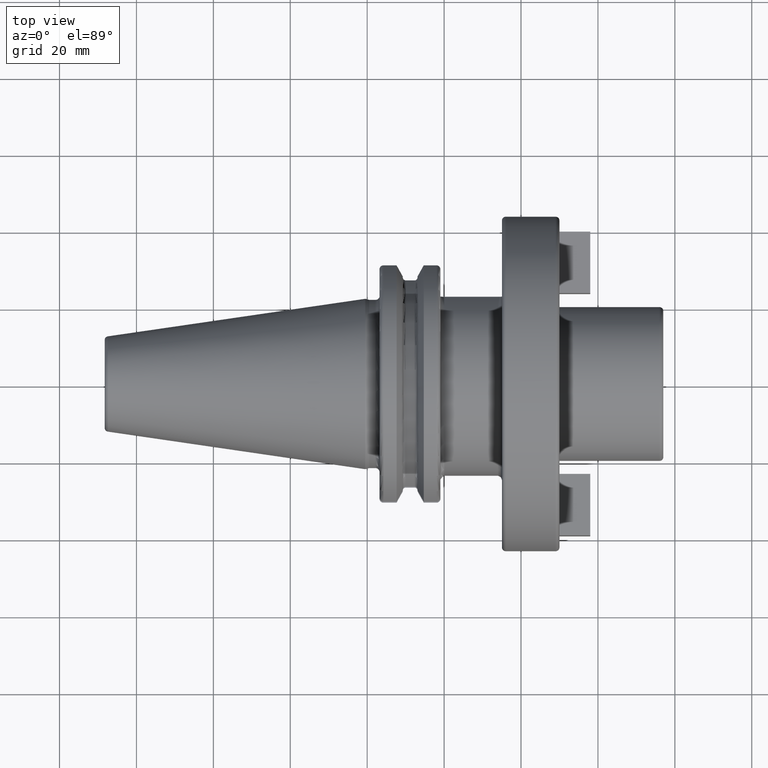
[diagram: clean part render]
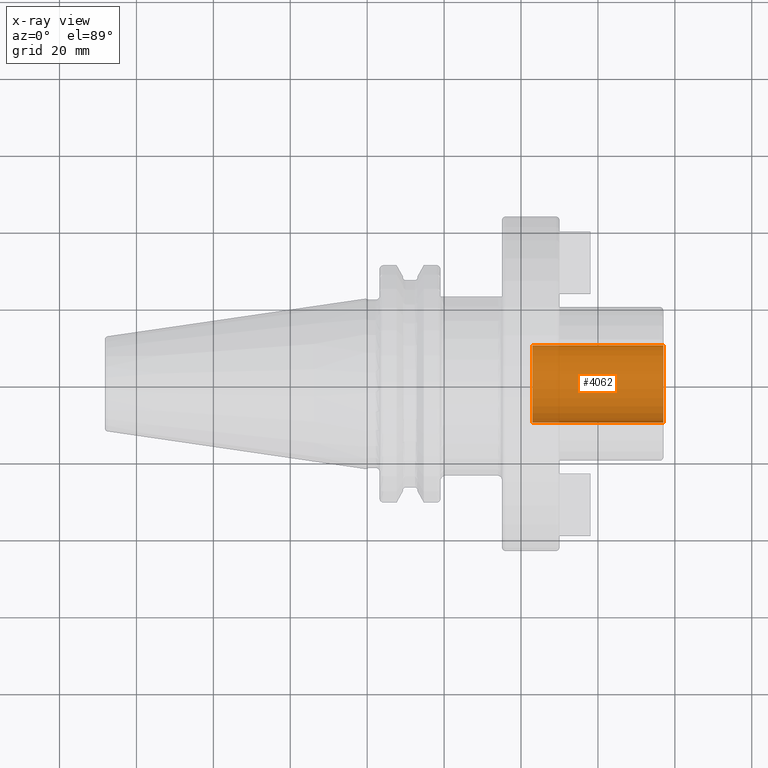
[diagram: x-ray — body ghosted, one internal face saturated and labeled with its STEP entity id]
A machine part, top view, then the same camera in x-ray: the body is ghosted and one INTERNAL B-rep face — a face not visible from any outside direction — is saturated and labeled: STEP entity #4062.
In plain terms, the highlighted cylindrical surface (partial cylindrical patch) has radius 10 mm, axis along (1, 0, 0).
Its self-contained STEP definition (entity closure, byte-faithful):
#3997=CARTESIAN_POINT('',(7.7E1,0.E0,0.E0));
#3998=DIRECTION('',(-1.E0,0.E0,0.E0));
#3999=DIRECTION('',(0.E0,1.E0,0.E0));
#4000=AXIS2_PLACEMENT_3D('',#3997,#3998,#3999);
#4007=DIRECTION('',(-1.E0,0.E0,0.E0));
#4008=VECTOR('',#4007,3.4E1);
#4009=CARTESIAN_POINT('',(7.7E1,1.E1,0.E0));
#4010=LINE('',#4009,#4008);
#4011=DIRECTION('',(-1.E0,0.E0,0.E0));
#4012=VECTOR('',#4011,3.4E1);
#4013=CARTESIAN_POINT('',(7.7E1,-1.E1,0.E0));
#4014=LINE('',#4013,#4012);
#4015=CARTESIAN_POINT('',(4.3E1,0.E0,0.E0));
#4016=DIRECTION('',(1.E0,0.E0,0.E0));
#4017=DIRECTION('',(0.E0,-1.E0,0.E0));
#4018=AXIS2_PLACEMENT_3D('',#4015,#4016,#4017);
#4035=CARTESIAN_POINT('',(4.3E1,-1.E1,0.E0));
#4036=CARTESIAN_POINT('',(4.3E1,1.E1,0.E0));
#4037=VERTEX_POINT('',#4035);
#4038=VERTEX_POINT('',#4036);
#4039=CARTESIAN_POINT('',(7.7E1,-1.E1,0.E0));
#4040=CARTESIAN_POINT('',(7.7E1,1.E1,0.E0));
#4041=VERTEX_POINT('',#4039);
#4042=VERTEX_POINT('',#4040);
#4047=CARTESIAN_POINT('',(2.422959306268E1,0.E0,0.E0));
#4048=DIRECTION('',(1.E0,0.E0,0.E0));
#4049=DIRECTION('',(0.E0,-1.E0,0.E0));
#4050=AXIS2_PLACEMENT_3D('',#4047,#4048,#4049);
#4051=CYLINDRICAL_SURFACE('',#4050,1.E1);
#4053=ORIENTED_EDGE('',*,*,#4052,.T.);
#4055=ORIENTED_EDGE('',*,*,#4054,.T.);
#4057=ORIENTED_EDGE('',*,*,#4056,.T.);
#4059=ORIENTED_EDGE('',*,*,#4058,.F.);
#4060=EDGE_LOOP('',(#4053,#4055,#4057,#4059));
#4061=FACE_OUTER_BOUND('',#4060,.F.);
#4062=ADVANCED_FACE('',(#4061),#4051,.F.);
#4001=CIRCLE('',#4000,1.E1);
#4019=CIRCLE('',#4018,1.E1);
#4052=EDGE_CURVE('',#4042,#4041,#4001,.T.);
#4054=EDGE_CURVE('',#4041,#4037,#4014,.T.);
#4056=EDGE_CURVE('',#4037,#4038,#4019,.T.);
#4058=EDGE_CURVE('',#4042,#4038,#4010,.T.);